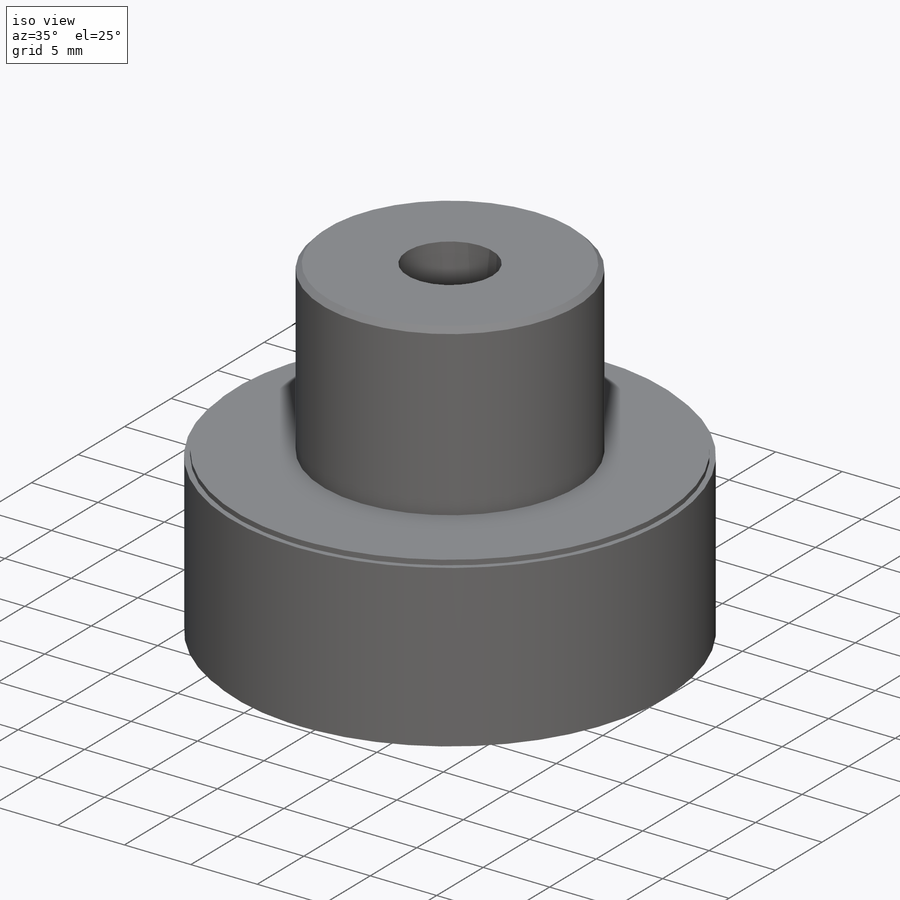
[diagram: iso view]
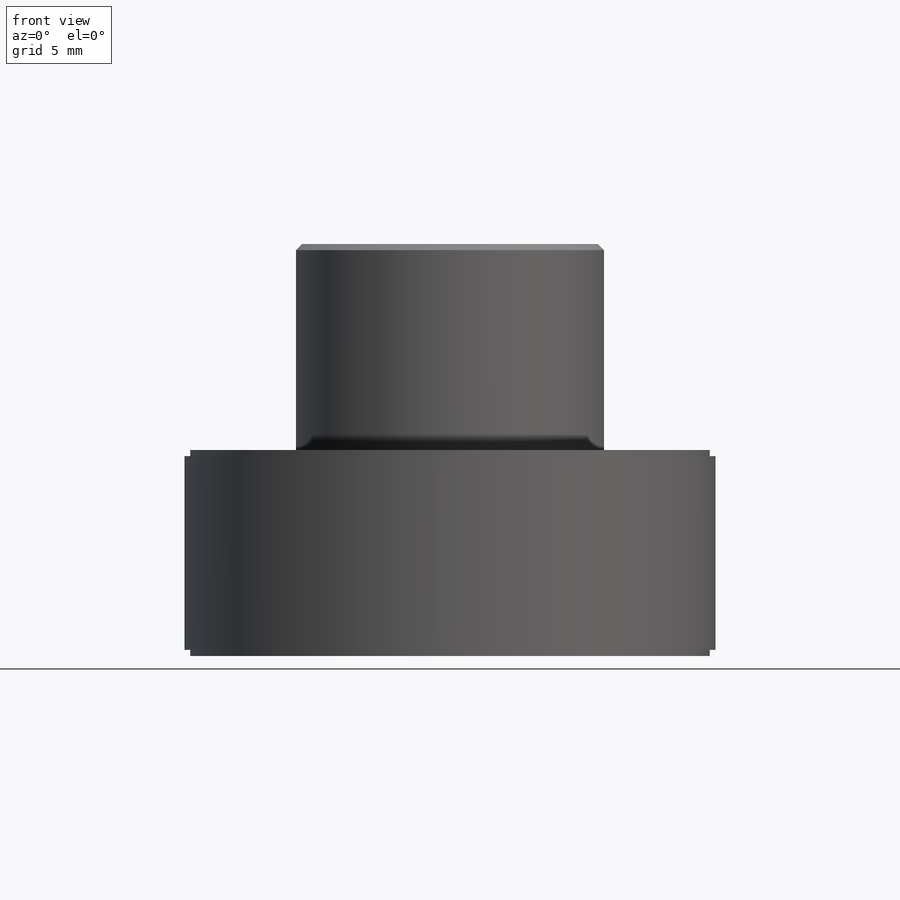
[diagram: front view]
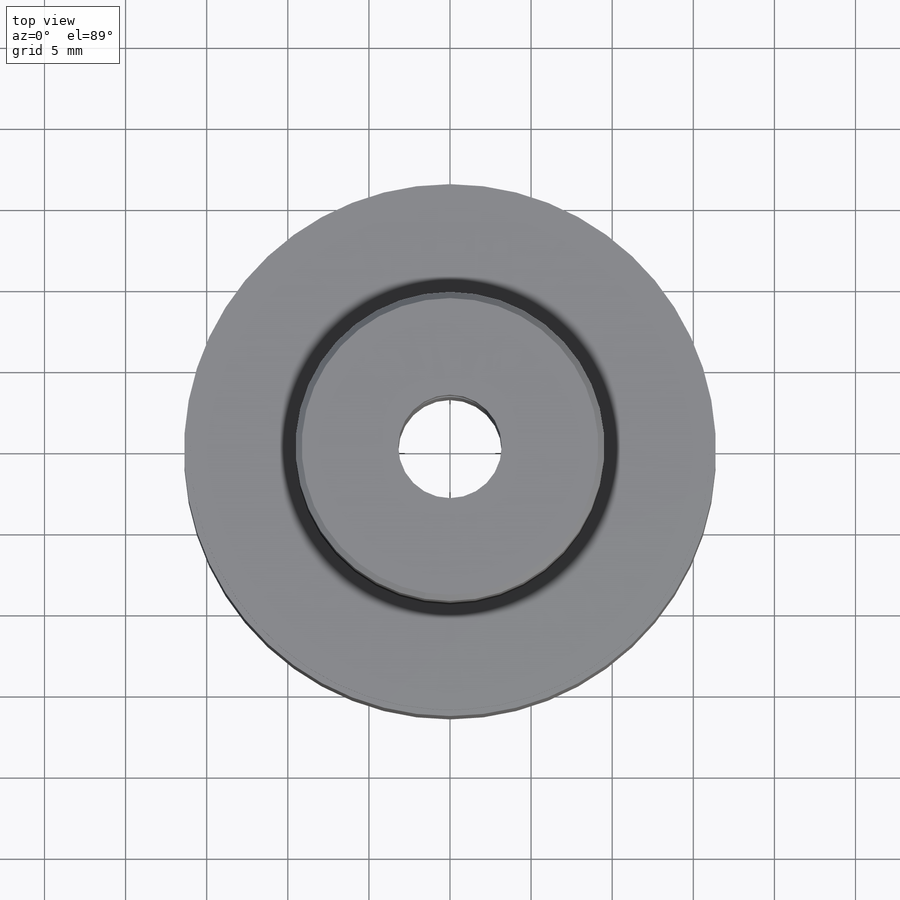
[diagram: top view]
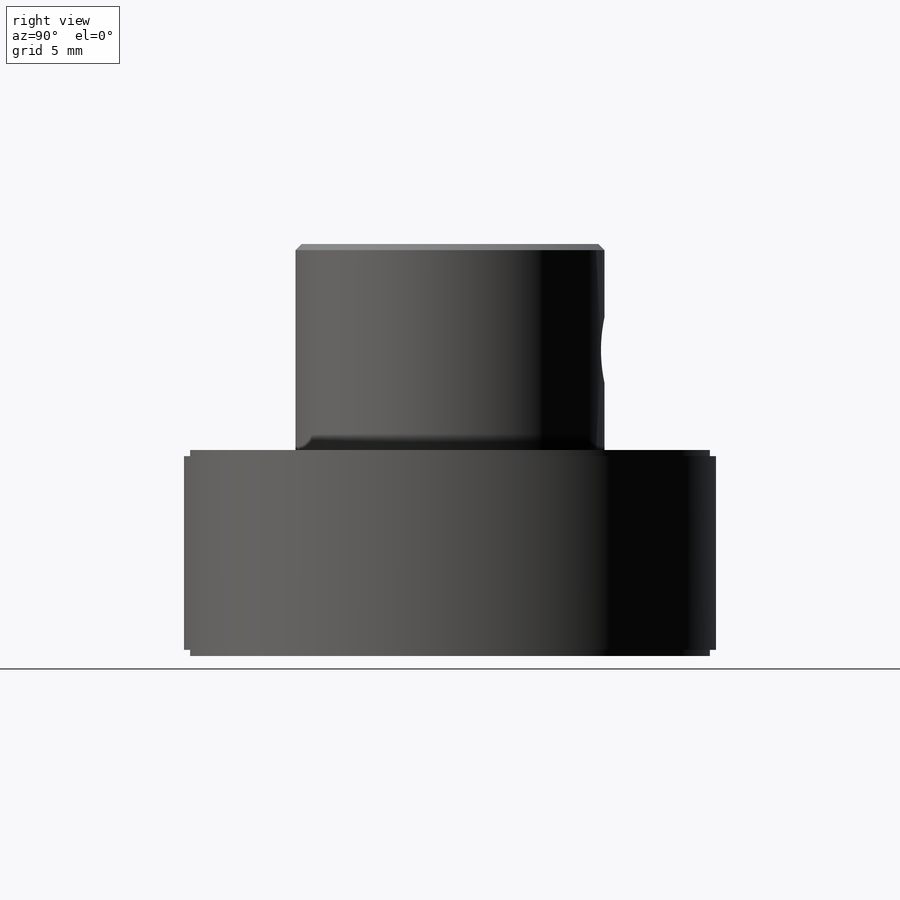
[diagram: right view]
SOLIDWORKS PART (.sldprt)
format: sldprt  version: not decoded by parser v0  size: 227,328 bytes
history: native  units: mm
features: sketch x9, extrude x5, cut_extrude x4, material x1 (+13 scaffold rows collapsed)
feature tree (32):
  scaffold x13  (default folders/planes/origin — collapsed)
  material  "Material <not specified>"
  sketch  "Sketch1"  dims[D1=16.4mm]
  extrude  "Boss-Extrude1"  Depth=0.38mm
  sketch  "Sketch2"  dims[D1=~19.670068mm]
  extrude  "Boss-Extrude2"  Depth=11.94mm
  sketch  "Sketch3"  dims[D1=~19.851477mm]
  extrude  "Boss-Extrude3"  Depth=0.38mm
  sketch  "Sketch4"  dims[D1=~21.231024mm]
  extrude  "Boss-Extrude4"  Depth=12.32mm
  sketch  "Sketch5"
  extrude  "Boss-Extrude5"  Depth=0.38mm
  sketch  "Sketch6"  dims[D1=~3.390563mm]
  cut_extrude  "Cut-Extrude1"  Depth=19.05mm
  sketch  "Sketch7"  dims[D1=9.145mm]
  cut_extrude  "Cut-Extrude5"  Depth=0.38mm
  sketch  "Sketch11"  dims[D1=~13.440044mm]
  cut_extrude  "Cut-Extrude6"  Depth=5.97mm
  sketch  "Sketch13"  dims[D1=~1.771377mm]
  cut_extrude  "Cut-Extrude7"  Depth=10.97mm
decode coverage: 17 of 18 modeling features carry decoded parameters
note: ~ marks probable driven/reference dimensions
note: suppression state not decoded; provenance and decode notes live in map.json
